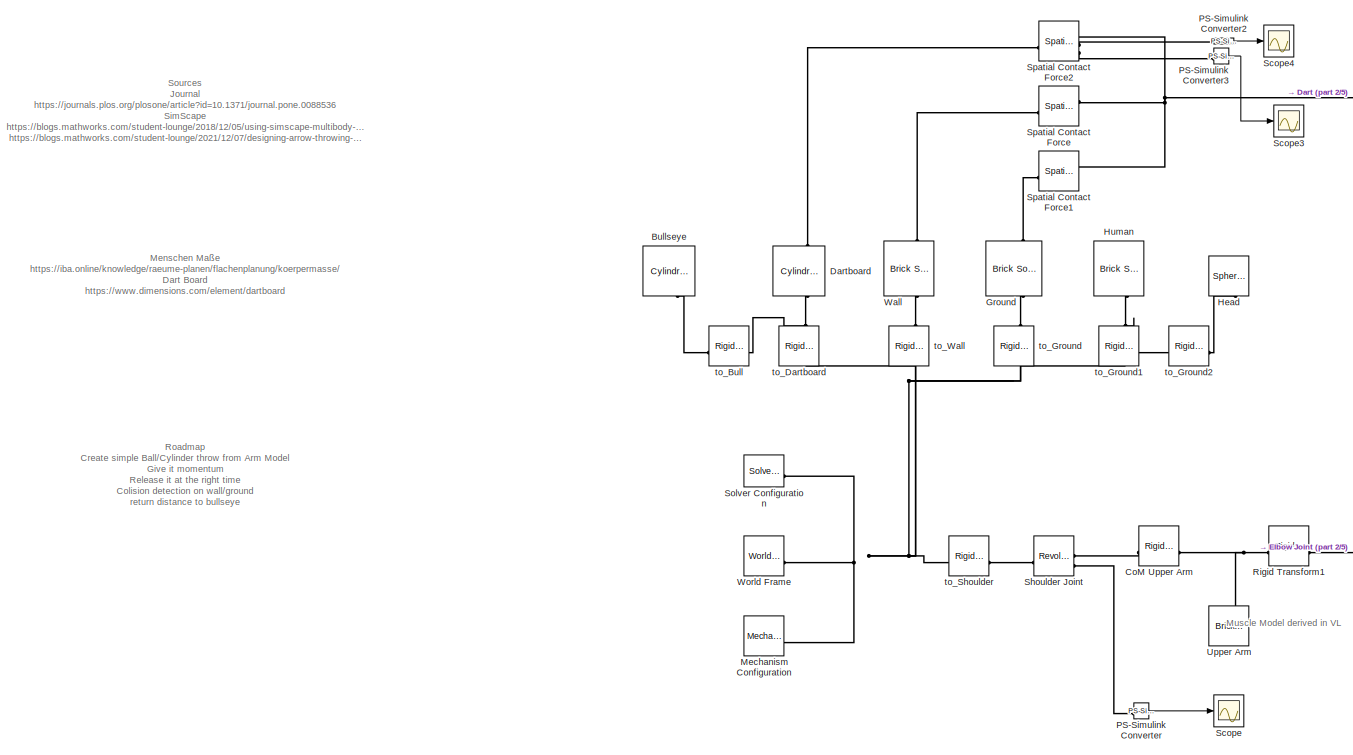
[diagram: root canvas - part 1/5, top left region]
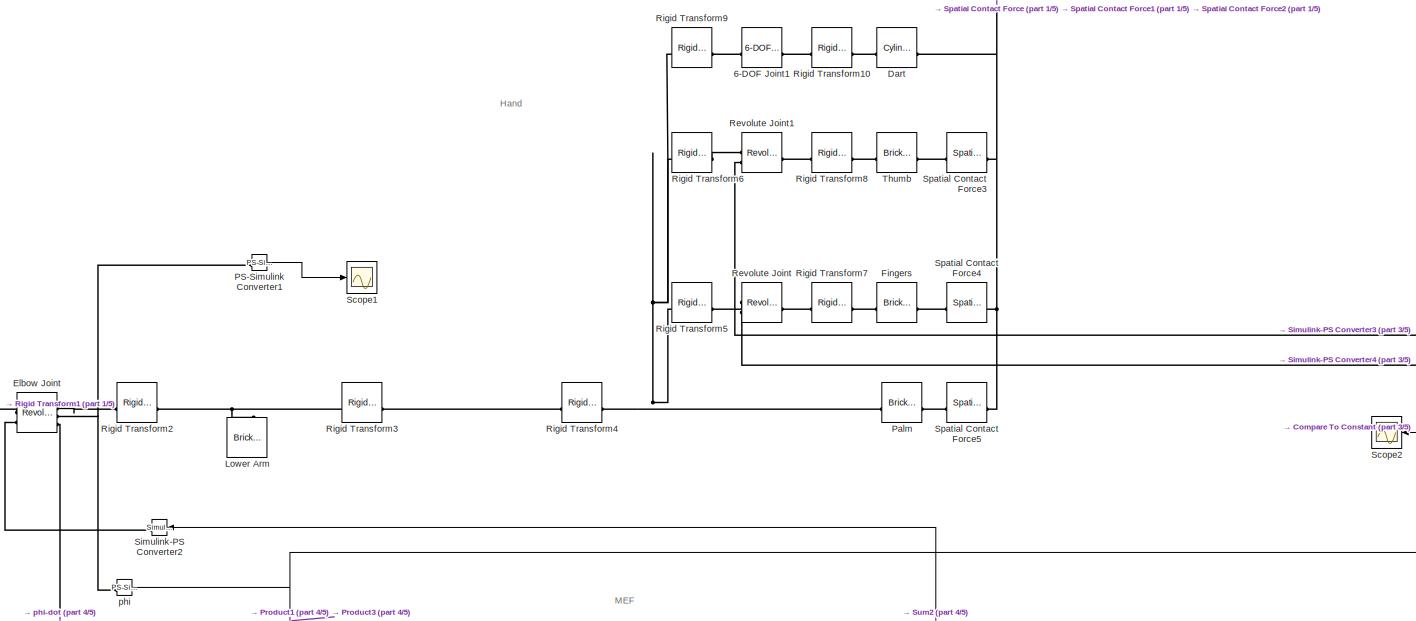
[diagram: root canvas - part 2/5, top center region]
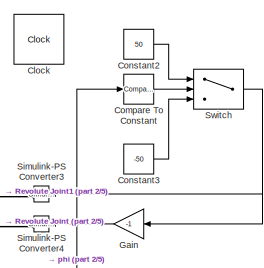
[diagram: root canvas - part 3/5, top right region]
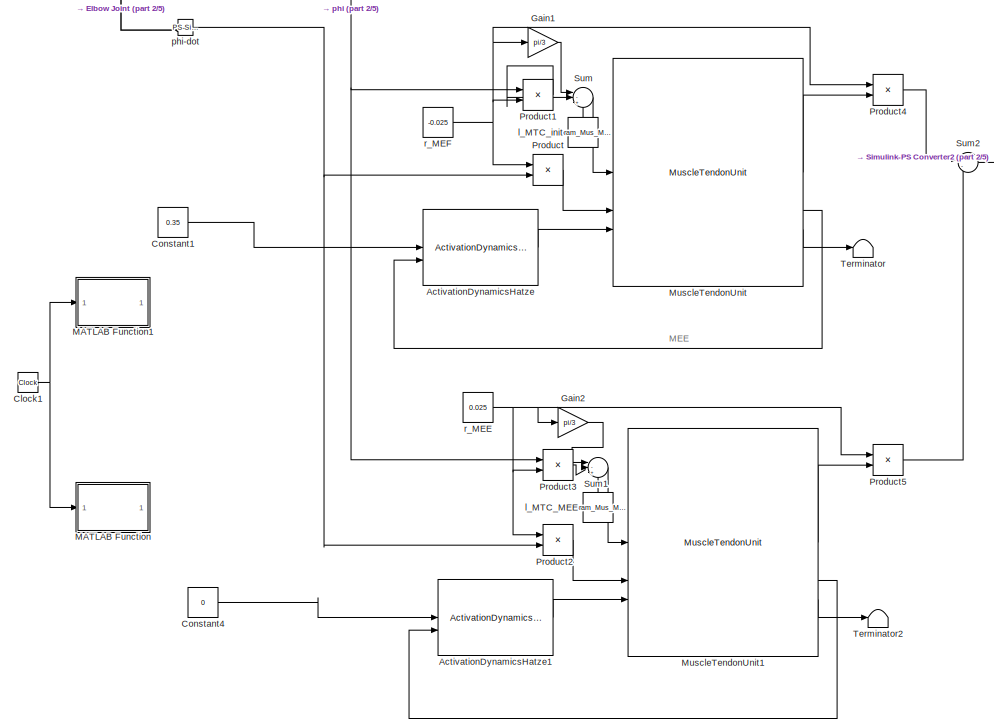
[diagram: root canvas - part 4/5, bottom center region]
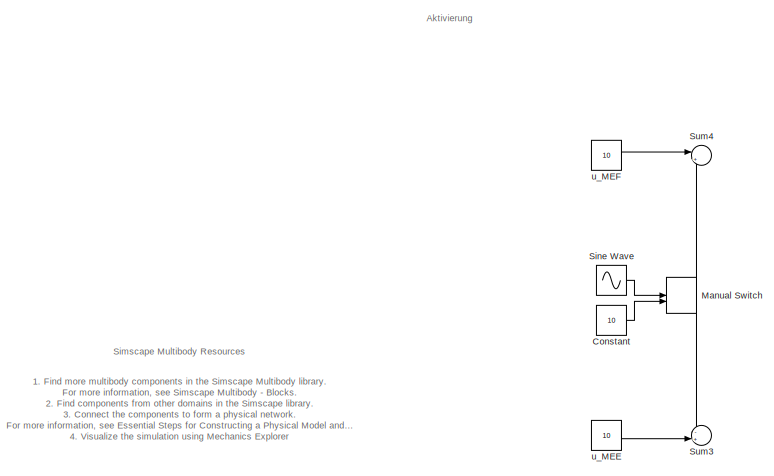
[diagram: root canvas - part 5/5, bottom left region]
MODEL slx_8198f08d7449
KIND model
CONFIG AbsTol = 1e-3
CONFIG EnableMultiTasking = on
CONFIG FixedStep = 0.0005
CONFIG MaxStep = auto
CONFIG MinStep = auto
CONFIG RelTol = 1e-3
CONFIG SampleTimeConstraint = Unconstrained
CONFIG SolverName = VariableStepAuto
CONFIG StartTime = 0.0
CONFIG StopTime = 2
BLOCK [Reference] 6-DOF Joint1  REF=sm_lib/Joints/6-DOF Joint
  SourceBlock = sm_lib/Joints/6-DOF Joint
  SourceType = 6-DOF Joint
BLOCK [Reference] ActivationDynamicsHatze  REF=Library_mtu_simulink/ActivationDynamicsHatze
  SourceBlock = Library_mtu_simulink/ActivationDynamicsHatze
  SourceType = Activation Dynamics
BLOCK [Reference] ActivationDynamicsHatze1  REF=Library_mtu_simulink/ActivationDynamicsHatze
  SourceBlock = Library_mtu_simulink/ActivationDynamicsHatze
  SourceType = Activation Dynamics
BLOCK [Reference] Bullseye  REF=sm_lib/Body Elements/Cylindrical Solid
  NameLocation = left
  SourceBlock = sm_lib/Body Elements/Cylindrical Solid
  SourceType = Cylindrical Solid
BLOCK [Clock] Clock
  Commented = on
  Decimation = 1.0
  DisplayTime = on
BLOCK [Clock] Clock1
  Commented = on
  Decimation = 1.0
BLOCK [Reference] CoM Upper Arm  REF=sm_lib/Frames and
Transforms/Rigid
Transform
  SourceBlock = sm_lib/Frames and\nTransforms/Rigid\nTransform
  SourceType = Rigid\nTransform
BLOCK [Reference] Compare To Constant  REF=simulink/Logic and Bit
Operations/Compare
To Constant
  SourceBlock = simulink/Logic and Bit\nOperations/Compare\nTo Constant
  SourceType = Compare To Constant
BLOCK [Constant] Constant
  Commented = on
  Value = 10
BLOCK [Constant] Constant1
  Value = 0.35
BLOCK [Constant] Constant2
  Value = 50
BLOCK [Constant] Constant3
  Value = -50
BLOCK [Constant] Constant4
  Value = 0
BLOCK [Reference] Dart  REF=sm_lib/Body Elements/Cylindrical Solid
  NameLocation = top
  SourceBlock = sm_lib/Body Elements/Cylindrical Solid
  SourceType = Cylindrical Solid
BLOCK [Reference] Dartboard  REF=sm_lib/Body Elements/Cylindrical Solid
  NameLocation = left
  SourceBlock = sm_lib/Body Elements/Cylindrical Solid
  SourceType = Cylindrical Solid
BLOCK [Reference] Elbow Joint  REF=sm_lib/Joints/Revolute Joint
  SourceBlock = sm_lib/Joints/Revolute Joint
  SourceType = Revolute Joint
BLOCK [Reference] Fingers  REF=sm_lib/Body Elements/Brick Solid
  NameLocation = top
  SourceBlock = sm_lib/Body Elements/Brick Solid
  SourceType = Brick Solid
BLOCK [Gain] Gain
  Gain = -1
  NameLocation = top
BLOCK [Gain] Gain1
  Gain = pi/3
BLOCK [Gain] Gain2
  Gain = pi/3
BLOCK [Reference] Ground  REF=sm_lib/Body Elements/Brick Solid
  NameLocation = left
  SourceBlock = sm_lib/Body Elements/Brick Solid
  SourceType = Brick Solid
BLOCK [Reference] Head  REF=sm_lib/Body Elements/Spherical Solid
  NameLocation = left
  SourceBlock = sm_lib/Body Elements/Spherical Solid
  SourceType = Spherical Solid
BLOCK [Reference] Human  REF=sm_lib/Body Elements/Brick Solid
  NameLocation = left
  SourceBlock = sm_lib/Body Elements/Brick Solid
  SourceType = Brick Solid
BLOCK [Reference] Lower Arm  REF=sm_lib/Body Elements/Brick Solid
  SourceBlock = sm_lib/Body Elements/Brick Solid
  SourceType = Brick Solid
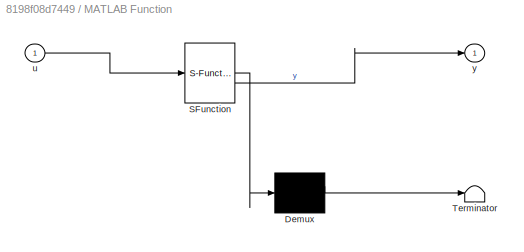
BLOCK [SubSystem] MATLAB Function
  Commented = on
  ErrorFcn = Stateflow.Translate.translate
  PermitHierarchicalResolution = ExplicitOnly
  SFBlockType = MATLAB Function
  TreatAsAtomicUnit = on
BLOCK [Demux] MATLAB Function/ Demux 
  Outputs = 1
BLOCK [S-Function] MATLAB Function/ SFunction 
  EnableBusSupport = on
  FunctionName = sf_sfun
  PortCounts = [1 2]
  SFcnIsStateOwnerBlock = off
  SFunctionDeploymentMode = off
  Tag = Stateflow S-Function 2
BLOCK [Terminator] MATLAB Function/ Terminator 
BLOCK [Inport] MATLAB Function/u
BLOCK [Outport] MATLAB Function/y
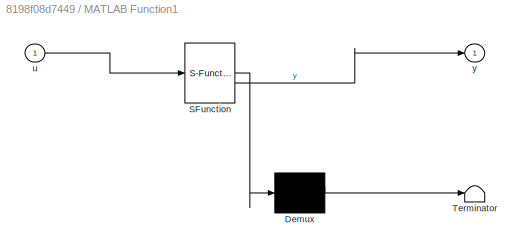
BLOCK [SubSystem] MATLAB Function1
  Commented = on
  ErrorFcn = Stateflow.Translate.translate
  PermitHierarchicalResolution = ExplicitOnly
  SFBlockType = MATLAB Function
  TreatAsAtomicUnit = on
BLOCK [Demux] MATLAB Function1/ Demux 
  Outputs = 1
BLOCK [S-Function] MATLAB Function1/ SFunction 
  EnableBusSupport = on
  FunctionName = sf_sfun
  PortCounts = [1 2]
  SFcnIsStateOwnerBlock = off
  SFunctionDeploymentMode = off
  Tag = Stateflow S-Function 1
BLOCK [Terminator] MATLAB Function1/ Terminator 
BLOCK [Inport] MATLAB Function1/u
BLOCK [Outport] MATLAB Function1/y
BLOCK [ManualSwitch] Manual Switch
  Commented = on
  CurrentSetting = 0
BLOCK [Reference] Mechanism Configuration  REF=sm_lib/Utilities/Mechanism
Configuration
  SourceBlock = sm_lib/Utilities/Mechanism\nConfiguration
  SourceType = Mechanism\nConfiguration
BLOCK [Reference] MuscleTendonUnit  REF=Library_mtu_simulink/MuscleTendonUnit
  SourceBlock = Library_mtu_simulink/MuscleTendonUnit
  SourceType = Muscle Tendon Complex Model
BLOCK [Reference] MuscleTendonUnit1  REF=Library_mtu_simulink/MuscleTendonUnit
  SourceBlock = Library_mtu_simulink/MuscleTendonUnit
  SourceType = Muscle Tendon Complex Model
BLOCK [Reference] PS-Simulink Converter  REF=nesl_utility/PS-Simulink
Converter
  SourceBlock = nesl_utility/PS-Simulink\nConverter
  SourceType = PS-Simulink\nConverter
BLOCK [Reference] PS-Simulink Converter1  REF=nesl_utility/PS-Simulink
Converter
  SourceBlock = nesl_utility/PS-Simulink\nConverter
  SourceType = PS-Simulink\nConverter
BLOCK [Reference] PS-Simulink Converter2  REF=nesl_utility/PS-Simulink
Converter
  SourceBlock = nesl_utility/PS-Simulink\nConverter
  SourceType = PS-Simulink\nConverter
BLOCK [Reference] PS-Simulink Converter3  REF=nesl_utility/PS-Simulink
Converter
  SourceBlock = nesl_utility/PS-Simulink\nConverter
  SourceType = PS-Simulink\nConverter
BLOCK [Reference] Palm  REF=sm_lib/Body Elements/Brick Solid
  NameLocation = top
  SourceBlock = sm_lib/Body Elements/Brick Solid
  SourceType = Brick Solid
BLOCK [Product] Product
BLOCK [Product] Product1
BLOCK [Product] Product2
BLOCK [Product] Product3
BLOCK [Product] Product4
BLOCK [Product] Product5
BLOCK [Reference] Revolute Joint  REF=sm_lib/Joints/Revolute Joint
  SourceBlock = sm_lib/Joints/Revolute Joint
  SourceType = Revolute Joint
BLOCK [Reference] Revolute Joint1  REF=sm_lib/Joints/Revolute Joint
  SourceBlock = sm_lib/Joints/Revolute Joint
  SourceType = Revolute Joint
BLOCK [Reference] Rigid Transform1  REF=sm_lib/Frames and
Transforms/Rigid
Transform
  SourceBlock = sm_lib/Frames and\nTransforms/Rigid\nTransform
  SourceType = Rigid\nTransform
BLOCK [Reference] Rigid Transform10  REF=sm_lib/Frames and
Transforms/Rigid
Transform
  SourceBlock = sm_lib/Frames and\nTransforms/Rigid\nTransform
  SourceType = Rigid\nTransform
BLOCK [Reference] Rigid Transform2  REF=sm_lib/Frames and
Transforms/Rigid
Transform
  SourceBlock = sm_lib/Frames and\nTransforms/Rigid\nTransform
  SourceType = Rigid\nTransform
BLOCK [Reference] Rigid Transform3  REF=sm_lib/Frames and
Transforms/Rigid
Transform
  SourceBlock = sm_lib/Frames and\nTransforms/Rigid\nTransform
  SourceType = Rigid\nTransform
BLOCK [Reference] Rigid Transform4  REF=sm_lib/Frames and
Transforms/Rigid
Transform
  SourceBlock = sm_lib/Frames and\nTransforms/Rigid\nTransform
  SourceType = Rigid\nTransform
BLOCK [Reference] Rigid Transform5  REF=sm_lib/Frames and
Transforms/Rigid
Transform
  SourceBlock = sm_lib/Frames and\nTransforms/Rigid\nTransform
  SourceType = Rigid\nTransform
BLOCK [Reference] Rigid Transform6  REF=sm_lib/Frames and
Transforms/Rigid
Transform
  SourceBlock = sm_lib/Frames and\nTransforms/Rigid\nTransform
  SourceType = Rigid\nTransform
BLOCK [Reference] Rigid Transform7  REF=sm_lib/Frames and
Transforms/Rigid
Transform
  SourceBlock = sm_lib/Frames and\nTransforms/Rigid\nTransform
  SourceType = Rigid\nTransform
BLOCK [Reference] Rigid Transform8  REF=sm_lib/Frames and
Transforms/Rigid
Transform
  SourceBlock = sm_lib/Frames and\nTransforms/Rigid\nTransform
  SourceType = Rigid\nTransform
BLOCK [Reference] Rigid Transform9  REF=sm_lib/Frames and
Transforms/Rigid
Transform
  SourceBlock = sm_lib/Frames and\nTransforms/Rigid\nTransform
  SourceType = Rigid\nTransform
BLOCK [Scope] Scope
  Floating = off
  NumInputPorts = 1
  ScopeSpecificationString = Simulink.scopes.TimeScopeBlockCfg('CurrentConfiguration', extmgr.ConfigurationSet(extmgr.Configuration('Core','General UI',true),extmgr.Configuration('Core','Source UI',true),extmgr.Configuration('Sources','WiredSimulink',true),extmgr.Configuration('Visuals','Time Domain',true,'SerializedDisplays',{struct('MinYLimReal','-0.00179','MaxYLimReal','0.0161','YLabelReal','','MinYLimMag','0.00000','MaxYL...<+1337ch>
BLOCK [Scope] Scope1
  Floating = off
  NumInputPorts = 1
  ScopeSpecificationString = Simulink.scopes.TimeScopeBlockCfg('CurrentConfiguration', extmgr.ConfigurationSet(extmgr.Configuration('Core','General UI',true),extmgr.Configuration('Core','Source UI',true),extmgr.Configuration('Sources','WiredSimulink',true,'DataLoggingVariableName','ScopeData1'),extmgr.Configuration('Visuals','Time Domain',true,'SerializedDisplays',{struct('MinYLimReal','-0.29477','MaxYLimReal','2.65292','YLab...<+1381ch>
BLOCK [Scope] Scope2
  Floating = off
  NameLocation = top
  NumInputPorts = 1
  ScopeSpecificationString = Simulink.scopes.TimeScopeBlockCfg('CurrentConfiguration', extmgr.ConfigurationSet(extmgr.Configuration('Core','General UI',true),extmgr.Configuration('Core','Source UI',true),extmgr.Configuration('Sources','WiredSimulink',true,'DataLoggingVariableName','ScopeData1'),extmgr.Configuration('Visuals','Time Domain',true,'SerializedDisplays',{struct('MinYLimReal','1.38925','MaxYLimReal','1.61596','YLabe...<+1407ch>
BLOCK [Scope] Scope3
  Floating = off
  NumInputPorts = 1
  ScopeSpecificationString = Simulink.scopes.TimeScopeBlockCfg('CurrentConfiguration', extmgr.ConfigurationSet(extmgr.Configuration('Core','General UI',true),extmgr.Configuration('Core','Source UI',true),extmgr.Configuration('Sources','WiredSimulink',true,'DataLoggingVariableName','ScopeData1'),extmgr.Configuration('Visuals','Time Domain',true,'SerializedDisplays',{struct('MinYLimReal','-0.28217','MaxYLimReal','2.51892','YLab...<+1413ch>
BLOCK [Scope] Scope4
  Floating = off
  NumInputPorts = 1
  ScopeSpecificationString = Simulink.scopes.TimeScopeBlockCfg('CurrentConfiguration', extmgr.ConfigurationSet(extmgr.Configuration('Core','General UI',true),extmgr.Configuration('Core','Source UI',true),extmgr.Configuration('Sources','WiredSimulink',true,'DataLoggingVariableName','ScopeData2'),extmgr.Configuration('Visuals','Time Domain',true),extmgr.Configuration('Tools','Plot Navigation',true),extmgr.Configuration('Tools',...<+40ch>
BLOCK [Reference] Shoulder Joint  REF=sm_lib/Joints/Revolute Joint
  SourceBlock = sm_lib/Joints/Revolute Joint
  SourceType = Revolute Joint
BLOCK [Reference] Simulink-PS Converter2  REF=nesl_utility/Simulink-PS
Converter
  NameLocation = top
  SourceBlock = nesl_utility/Simulink-PS\nConverter
  SourceType = Simulink-PS\nConverter
BLOCK [Reference] Simulink-PS Converter3  REF=nesl_utility/Simulink-PS
Converter
  NameLocation = top
  SourceBlock = nesl_utility/Simulink-PS\nConverter
  SourceType = Simulink-PS\nConverter
BLOCK [Reference] Simulink-PS Converter4  REF=nesl_utility/Simulink-PS
Converter
  NameLocation = top
  SourceBlock = nesl_utility/Simulink-PS\nConverter
  SourceType = Simulink-PS\nConverter
BLOCK [Sin] Sine Wave
  Amplitude = 0.5
  Commented = on
  Phase = pi/4
  SampleTime = 0
BLOCK [Reference] Solver Configuration  REF=nesl_utility/Solver
Configuration
  SourceBlock = nesl_utility/Solver\nConfiguration
  SourceType = Solver\nConfiguration
BLOCK [Reference] Spatial Contact Force  REF=sm_lib/Forces and
Torques/Spatial
Contact Force
  SourceBlock = sm_lib/Forces and\nTorques/Spatial\nContact Force
  SourceType = Spatial\nContact Force
BLOCK [Reference] Spatial Contact Force1  REF=sm_lib/Forces and
Torques/Spatial
Contact Force
  SourceBlock = sm_lib/Forces and\nTorques/Spatial\nContact Force
  SourceType = Spatial\nContact Force
BLOCK [Reference] Spatial Contact Force2  REF=sm_lib/Forces and
Torques/Spatial
Contact Force
  SourceBlock = sm_lib/Forces and\nTorques/Spatial\nContact Force
  SourceType = Spatial\nContact Force
BLOCK [Reference] Spatial Contact Force3  REF=sm_lib/Forces and
Torques/Spatial
Contact Force
  SourceBlock = sm_lib/Forces and\nTorques/Spatial\nContact Force
  SourceType = Spatial\nContact Force
BLOCK [Reference] Spatial Contact Force4  REF=sm_lib/Forces and
Torques/Spatial
Contact Force
  SourceBlock = sm_lib/Forces and\nTorques/Spatial\nContact Force
  SourceType = Spatial\nContact Force
BLOCK [Reference] Spatial Contact Force5  REF=sm_lib/Forces and
Torques/Spatial
Contact Force
  SourceBlock = sm_lib/Forces and\nTorques/Spatial\nContact Force
  SourceType = Spatial\nContact Force
BLOCK [Sum] Sum
  Inputs = |-++
  NameLocation = top
BLOCK [Sum] Sum1
  Inputs = |-++
  NameLocation = top
BLOCK [Sum] Sum2
  Inputs = |--
BLOCK [Sum] Sum3
  Commented = on
  Inputs = -+|
BLOCK [Sum] Sum4
  Commented = on
  Inputs = |++
  NameLocation = top
BLOCK [Switch] Switch
  Criteria = u2 > Threshold
  InputSameDT = off
  SaturateOnIntegerOverflow = off
BLOCK [Terminator] Terminator
BLOCK [Terminator] Terminator2
BLOCK [Reference] Thumb  REF=sm_lib/Body Elements/Brick Solid
  NameLocation = top
  SourceBlock = sm_lib/Body Elements/Brick Solid
  SourceType = Brick Solid
BLOCK [Reference] Upper Arm  REF=sm_lib/Body Elements/Brick Solid
  SourceBlock = sm_lib/Body Elements/Brick Solid
  SourceType = Brick Solid
BLOCK [Reference] Wall  REF=sm_lib/Body Elements/Brick Solid
  NameLocation = left
  SourceBlock = sm_lib/Body Elements/Brick Solid
  SourceType = Brick Solid
BLOCK [Reference] World Frame  REF=sm_lib/Frames and
Transforms/World Frame
  SourceBlock = sm_lib/Frames and\nTransforms/World Frame
  SourceType = World Frame
BLOCK [Constant] l_MTC_MEE
  NameLocation = right
  Value = Param_Mus_MEE.l_MTC_init
BLOCK [Constant] l_MTC_init
  NameLocation = right
  Value = Param_Mus_MEF.l_MTC_init
BLOCK [Reference] phi  REF=nesl_utility/PS-Simulink
Converter
  SourceBlock = nesl_utility/PS-Simulink\nConverter
  SourceType = PS-Simulink\nConverter
BLOCK [Reference] phi-dot  REF=nesl_utility/PS-Simulink
Converter
  SourceBlock = nesl_utility/PS-Simulink\nConverter
  SourceType = PS-Simulink\nConverter
BLOCK [Constant] r_MEE
  Value = 0.025
BLOCK [Constant] r_MEF
  Value = -0.025
BLOCK [Reference] to_Bull  REF=sm_lib/Frames and
Transforms/Rigid
Transform
  NameLocation = top
  SourceBlock = sm_lib/Frames and\nTransforms/Rigid\nTransform
  SourceType = Rigid\nTransform
BLOCK [Reference] to_Dartboard  REF=sm_lib/Frames and
Transforms/Rigid
Transform
  NameLocation = right
  SourceBlock = sm_lib/Frames and\nTransforms/Rigid\nTransform
  SourceType = Rigid\nTransform
BLOCK [Reference] to_Ground  REF=sm_lib/Frames and
Transforms/Rigid
Transform
  NameLocation = right
  SourceBlock = sm_lib/Frames and\nTransforms/Rigid\nTransform
  SourceType = Rigid\nTransform
BLOCK [Reference] to_Ground1  REF=sm_lib/Frames and
Transforms/Rigid
Transform
  NameLocation = right
  SourceBlock = sm_lib/Frames and\nTransforms/Rigid\nTransform
  SourceType = Rigid\nTransform
BLOCK [Reference] to_Ground2  REF=sm_lib/Frames and
Transforms/Rigid
Transform
  SourceBlock = sm_lib/Frames and\nTransforms/Rigid\nTransform
  SourceType = Rigid\nTransform
BLOCK [Reference] to_Shoulder  REF=sm_lib/Frames and
Transforms/Rigid
Transform
  SourceBlock = sm_lib/Frames and\nTransforms/Rigid\nTransform
  SourceType = Rigid\nTransform
BLOCK [Reference] to_Wall  REF=sm_lib/Frames and
Transforms/Rigid
Transform
  NameLocation = right
  SourceBlock = sm_lib/Frames and\nTransforms/Rigid\nTransform
  SourceType = Rigid\nTransform
BLOCK [Constant] u_MEE
  Commented = on
  Value = 10
BLOCK [Constant] u_MEF
  Commented = on
  Value = 10
ANNOTATION (root): Menschen Maße https://iba.online/knowledge/raeume-planen/flachenplanung/koerpermasse/ Dart Board https://www.dimensions.com/element/dartboard
ANNOTATION (root): Roadmap Create simple Ball/Cylinder throw from Arm Model Give it momentum Release it at the right time Colision detection on wall/ground return distance to bullseye FEEDBACK: Activate the muscle such that the dartboard is hit with feedback Add-Ons Make muscle activation difficult to time (e.g. random) -> are there better throw combinations Add AirDrag and more advanced Dart Model More advance hand...<+6ch>
ANNOTATION (root): Sources Journal https://journals.plos.org/plosone/article?id=10.1371/journal.pone.0088536 SimScape https://blogs.mathworks.com/student-lounge/2018/12/05/using-simscape-multibody-to-throw-an-object-at-a-target/ https://blogs.mathworks.com/student-lounge/2021/12/07/designing-arrow-throwing-robots-by-team-djs-robocon/?s_tid=blogs_rc_1
ANNOTATION (root): 1. Find more multibody components in the Simscape Multibody library . For more information, see Simscape Multibody - Blocks . 2. Find components from other domains in the Simscape library . 3. Connect the components to form a physical network. For more information, see Essential Steps for Constructing a Physical Model and Creating a Multibody Model . 4. Visualize the simulation using Mechanics Exp...<+52ch>
ANNOTATION (root): MEF
ANNOTATION (root): MEE
ANNOTATION (root): Aktivierung
ANNOTATION (root): Hand
ANNOTATION (root): Muscle Model derived in VL
ANNOTATION (root): Simscape Multibody Resources
LINE ActivationDynamicsHatze1:1 -> MuscleTendonUnit1:3
LINE ActivationDynamicsHatze:1 -> MuscleTendonUnit:3
NET Clock1:1 -> MATLAB Function1:1, MATLAB Function:1
LINE Compare To Constant:1 -> Switch:2
LINE Constant1:1 -> ActivationDynamicsHatze:1
LINE Constant2:1 -> Switch:1
LINE Constant3:1 -> Switch:3
LINE Constant4:1 -> ActivationDynamicsHatze1:1
LINE Constant:1 -> Manual Switch:2
LINE Gain1:1 -> Sum:1
LINE Gain2:1 -> Sum1:1
LINE Gain:1 -> Simulink-PS Converter4:1
NET Manual Switch:1 -> Sum3:1, Sum4:2
LINE MuscleTendonUnit1:1 -> Product5:2
LINE MuscleTendonUnit1:2 -> ActivationDynamicsHatze1:2
LINE MuscleTendonUnit1:3 -> Terminator2:1
LINE MuscleTendonUnit:1 -> Product4:2
LINE MuscleTendonUnit:2 -> ActivationDynamicsHatze:2
LINE MuscleTendonUnit:3 -> Terminator:1
LINE PS-Simulink Converter1:1 -> Scope1:1
LINE PS-Simulink Converter2:1 -> Scope4:1
LINE PS-Simulink Converter3:1 -> Scope3:1
LINE PS-Simulink Converter:1 -> Scope:1
LINE Product1:1 -> Sum:2
LINE Product2:1 -> MuscleTendonUnit1:2
LINE Product3:1 -> Sum1:2
LINE Product4:1 -> Sum2:1
LINE Product5:1 -> Sum2:2
LINE Product:1 -> MuscleTendonUnit:2
LINE Sine Wave:1 -> Manual Switch:1
LINE Sum1:1 -> MuscleTendonUnit1:1
LINE Sum2:1 -> Simulink-PS Converter2:1
LINE Sum:1 -> MuscleTendonUnit:1
NET Switch:1 -> Gain:1, Simulink-PS Converter3:1
LINE l_MTC_MEE:1 -> Sum1:3
LINE l_MTC_init:1 -> Sum:3
NET phi-dot:1 -> Product2:2, Product:2
NET phi:1 -> Compare To Constant:1, Product1:1, Product3:1, Scope2:1
NET r_MEE:1 -> Gain2:1, Product2:1, Product3:2, Product5:1
NET r_MEF:1 -> Gain1:1, Product1:2, Product4:1, Product:1
LINE u_MEE:1 -> Sum3:2
LINE u_MEF:1 -> Sum4:1
PLINE 6-DOF Joint1:LConn1 -- Rigid Transform9:RConn1
PLINE 6-DOF Joint1:RConn1 -- Rigid Transform10:LConn1
PLINE Bullseye:RConn1 -- to_Bull:RConn1
PLINE CoM Upper Arm:LConn1 -- Shoulder Joint:RConn1
PNET net1: CoM Upper Arm:RConn1 -- Rigid Transform1:LConn1 -- Upper Arm:RConn1
PNET net2: Dart:LConn1 -- Spatial Contact Force1:RConn1 -- Spatial Contact Force2:RConn1 -- Spatial Contact Force3:RConn1 -- Spatial Contact Force4:RConn1 -- Spatial Contact Force5:RConn1 -- Spatial Contact Force:RConn1
PLINE Dart:RConn1 -- Rigid Transform10:RConn1
PLINE Dartboard:LConn1 -- Spatial Contact Force2:LConn1
PNET net3: Dartboard:RConn1 -- to_Bull:LConn1 -- to_Dartboard:RConn1
PLINE Elbow Joint:LConn1 -- Rigid Transform1:RConn1
PLINE Elbow Joint:LConn2 -- Simulink-PS Converter2:RConn1
PLINE Elbow Joint:RConn1 -- Rigid Transform2:LConn1
PNET net4: Elbow Joint:RConn2 -- PS-Simulink Converter1:LConn1 -- phi:LConn1
PLINE Elbow Joint:RConn3 -- phi-dot:LConn1
PLINE Fingers:LConn1 -- Spatial Contact Force4:LConn1
PLINE Fingers:RConn1 -- Rigid Transform7:RConn1
PLINE Ground:LConn1 -- Spatial Contact Force1:LConn1
PLINE Ground:RConn1 -- to_Ground:RConn1
PLINE Head:RConn1 -- to_Ground2:RConn1
PNET net5: Human:RConn1 -- to_Ground1:RConn1 -- to_Ground2:LConn1
PNET net6: Lower Arm:RConn1 -- Rigid Transform2:RConn1 -- Rigid Transform3:LConn1
PNET net7: Mechanism Configuration:RConn1 -- Solver Configuration:RConn1 -- World Frame:RConn1 -- to_Dartboard:LConn1 -- to_Ground1:LConn1 -- to_Ground:LConn1 -- to_Shoulder:LConn1 -- to_Wall:LConn1
PLINE PS-Simulink Converter2:LConn1 -- Spatial Contact Force2:RConn2
PLINE PS-Simulink Converter3:LConn1 -- Spatial Contact Force2:RConn3
PLINE PS-Simulink Converter:LConn1 -- Shoulder Joint:RConn2
PLINE Palm:LConn1 -- Spatial Contact Force5:LConn1
PNET net8: Palm:RConn1 -- Rigid Transform4:RConn1 -- Rigid Transform5:LConn1 -- Rigid Transform6:LConn1 -- Rigid Transform9:LConn1
PLINE Revolute Joint1:LConn1 -- Rigid Transform6:RConn1
PLINE Revolute Joint1:LConn2 -- Simulink-PS Converter3:RConn1
PLINE Revolute Joint1:RConn1 -- Rigid Transform8:LConn1
PLINE Revolute Joint:LConn1 -- Rigid Transform5:RConn1
PLINE Revolute Joint:LConn2 -- Simulink-PS Converter4:RConn1
PLINE Revolute Joint:RConn1 -- Rigid Transform7:LConn1
PLINE Rigid Transform3:RConn1 -- Rigid Transform4:LConn1
PLINE Rigid Transform8:RConn1 -- Thumb:RConn1
PLINE Shoulder Joint:LConn1 -- to_Shoulder:RConn1
PLINE Spatial Contact Force3:LConn1 -- Thumb:LConn1
PLINE Spatial Contact Force:LConn1 -- Wall:LConn1
PLINE Wall:RConn1 -- to_Wall:RConn1
note: NET lines group one-source signal fan-out (src -> all destinations, sorted); 1:1 wires keep LINE; PNET lines group multi-terminal physical nets as a canonical sorted terminal list (undirected conserving connections); 2-terminal nets keep the pairwise PLINE form
CHART MATLAB Function states=1 transitions=1
  STATE_LABEL 'eML_blk_kernel()'
  STATE_LABEL 'SCRIPT:\nfunction y = tanh(u)\n\ny = 0.4*tanh(0.5*u-2)-tanh(-2)*0.4+0.01;\n'
CHART MATLAB Function1 states=1 transitions=1
  STATE_LABEL 'eML_blk_kernel()'
  STATE_LABEL 'SCRIPT:\nfunction y = minus_tanh(u)\n\ny = -0.4*tanh(0.5*u)+0.4;\n'
CHART  states=0 transitions=0
CHART  states=0 transitions=0
